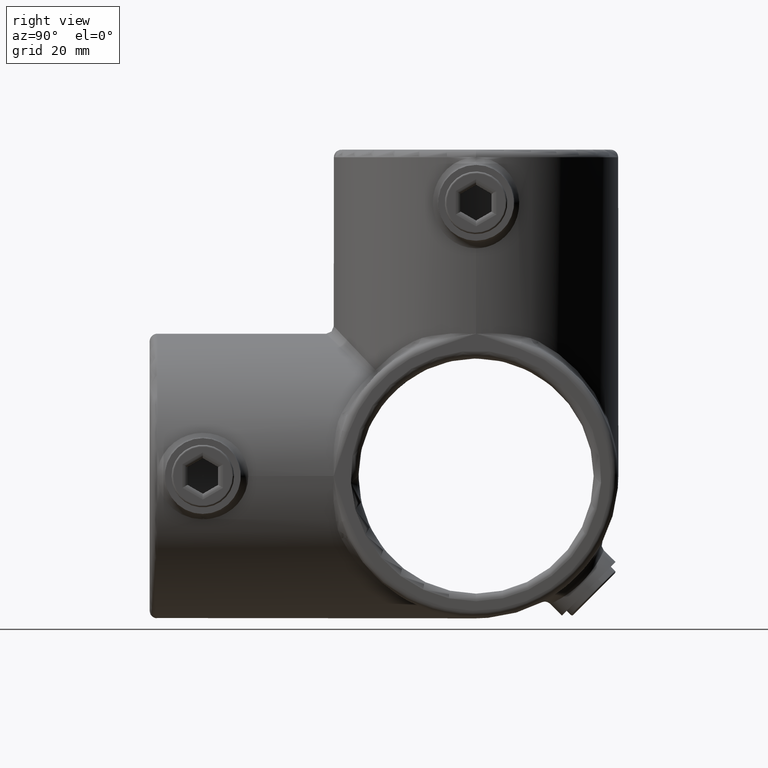
[diagram: clean part render]
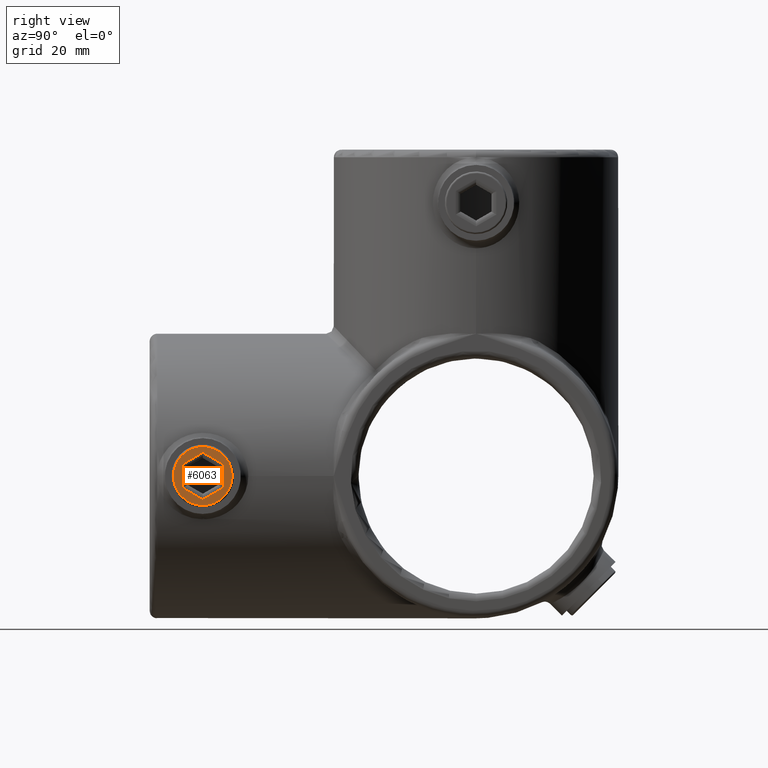
[diagram: same view with one face highlighted and labeled with its STEP entity id]
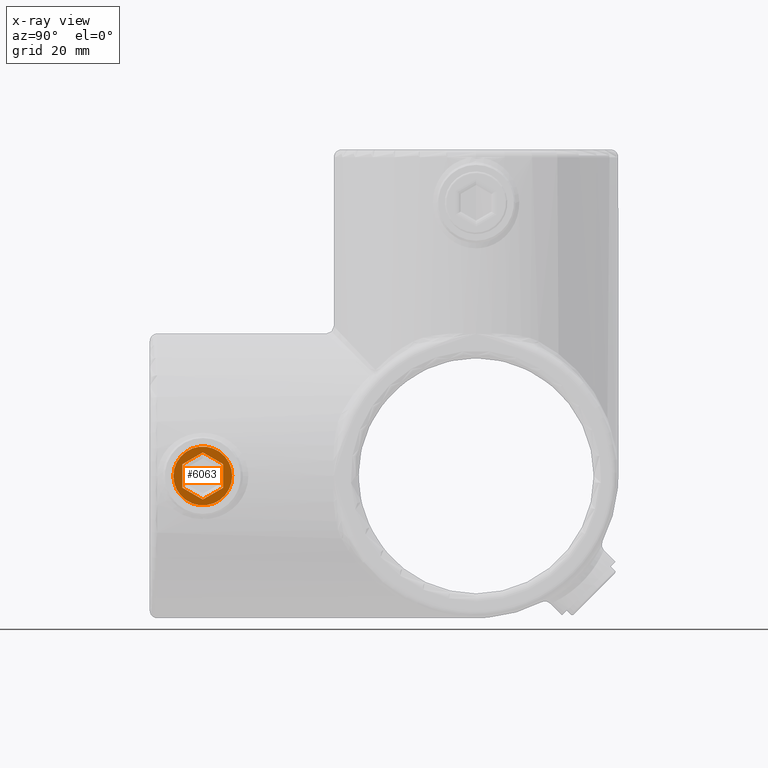
[diagram: x-ray of the same camera — body ghosted, the highlighted face saturated]
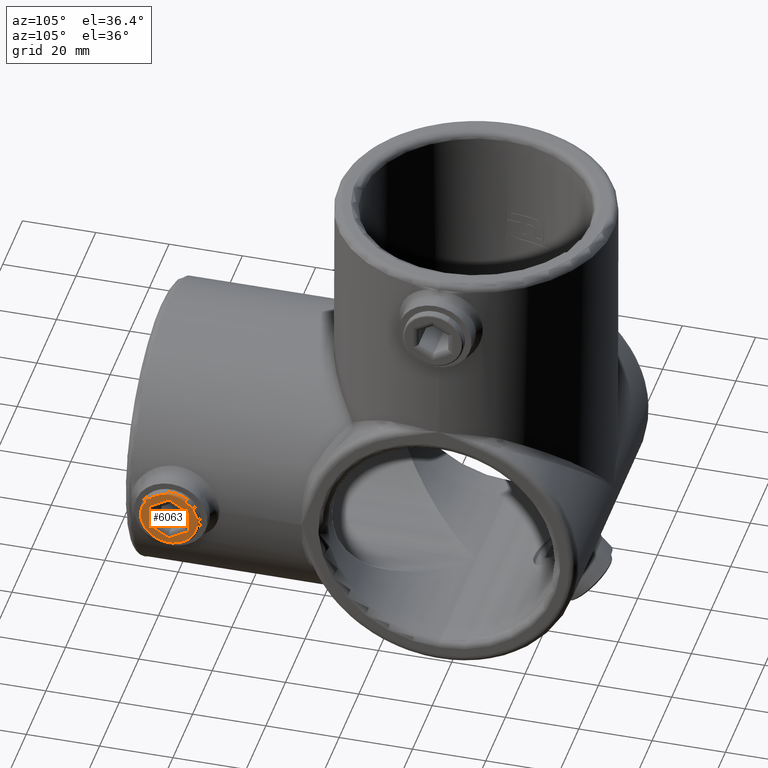
[diagram: same view with one face highlighted and labeled with its STEP entity id]
A machine part, right view. The second image highlights one B-rep face of the part: STEP entity #6063.
The next image is the same camera in x-ray: the body ghosted, the highlighted face saturated — about 0% of this face is hidden behind the body in this view.
A second angle (auxiliary view) of the same face is appended — the face is thin or edge-on in the first view.
In plain terms, the highlighted planar face has unit normal (1, 0, 0).
Its self-contained STEP definition (entity closure, byte-faithful):
#876 = VECTOR ( 'NONE', #11695, 1000.000000000000114 ) ;
#1047 = CARTESIAN_POINT ( 'NONE',  ( -5.964981491036366990, 13.00000000000000000, 0.4114378277661476790 ) ) ;
#1425 = PLANE ( 'NONE',  #4088 ) ;
#1537 = LINE ( 'NONE', #7346, #7640 ) ;
#1539 = EDGE_CURVE ( 'NONE', #14289, #4904, #1537, .T. ) ;
#1662 = VERTEX_POINT ( 'NONE', #3374 ) ;
#1779 = ORIENTED_EDGE ( 'NONE', *, *, #7609, .T. ) ;
#1805 = CARTESIAN_POINT ( 'NONE',  ( 3.101262615825974844, 13.00000000000000000, -5.371544418224547535 ) ) ;
#2284 = DIRECTION ( 'NONE',  ( -1.000000000000000000, 0.000000000000000000, -1.855319225643643478E-16 ) ) ;
#2707 = CARTESIAN_POINT ( 'NONE',  ( 0.000000000000000000, 13.00000000000000000, 0.000000000000000000 ) ) ;
#2946 = ORIENTED_EDGE ( 'NONE', *, *, #9112, .T. ) ;
#2993 = EDGE_LOOP ( 'NONE', ( #4885 ) ) ;
#3134 = VECTOR ( 'NONE', #14399, 1000.000000000000227 ) ;
#3296 = DIRECTION ( 'NONE',  ( 1.000000000000000000, -0.000000000000000000, 0.000000000000000000 ) ) ;
#3374 = CARTESIAN_POINT ( 'NONE',  ( -3.101262615825973068, 13.00000000000000000, -5.371544418224547535 ) ) ;
#4088 = AXIS2_PLACEMENT_3D ( 'NONE', #2707, #11572, #7659 ) ;
#4428 = LINE ( 'NONE', #15544, #14392 ) ;
#4587 = DIRECTION ( 'NONE',  ( 0.000000000000000000, 1.000000000000000000, 0.000000000000000000 ) ) ;
#4885 = ORIENTED_EDGE ( 'NONE', *, *, #11343, .T. ) ;
#4904 = VERTEX_POINT ( 'NONE', #11298 ) ;
#4990 = CARTESIAN_POINT ( 'NONE',  ( -2.626175134594815219, 13.00000000000000000, 5.371544418224547535 ) ) ;
#5654 = EDGE_CURVE ( 'NONE', #6940, #14289, #4428, .T. ) ;
#5712 = VERTEX_POINT ( 'NONE', #7907 ) ;
#6047 = CARTESIAN_POINT ( 'NONE',  ( -6.202525231651947024, 13.00000000000000000, 8.673617379884035472E-16 ) ) ;
#6063 = ADVANCED_FACE ( 'NONE', ( #13967, #15755 ), #1425, .T. ) ;
#6145 = DIRECTION ( 'NONE',  ( -0.4999999999999992228, 0.000000000000000000, 0.8660254037844390407 ) ) ;
#6852 = CARTESIAN_POINT ( 'NONE',  ( 6.202525231651947912, 13.00000000000000000, -1.409462824231155764E-15 ) ) ;
#6940 = VERTEX_POINT ( 'NONE', #1805 ) ;
#7048 = CARTESIAN_POINT ( 'NONE',  ( 2.626175134594813443, 13.00000000000000000, -5.371544418224547535 ) ) ;
#7164 = CARTESIAN_POINT ( 'NONE',  ( 0.000000000000000000, 13.00000000000000000, 7.750000000000000000 ) ) ;
#7346 = CARTESIAN_POINT ( 'NONE',  ( 3.338806356441557099, 13.00000000000000000, 4.960106590458402742 ) ) ;
#7609 = EDGE_CURVE ( 'NONE', #15599, #1662, #15839, .T. ) ;
#7640 = VECTOR ( 'NONE', #6145, 1000.000000000000227 ) ;
#7659 = DIRECTION ( 'NONE',  ( 0.000000000000000000, -0.000000000000000000, 1.000000000000000000 ) ) ;
#7731 = EDGE_CURVE ( 'NONE', #1662, #6940, #10453, .T. ) ;
#7759 = CIRCLE ( 'NONE', #8085, 7.750000000000000000 ) ;
#7907 = CARTESIAN_POINT ( 'NONE',  ( -3.101262615825973956, 13.00000000000000000, 5.371544418224547535 ) ) ;
#7982 = LINE ( 'NONE', #4990, #12366 ) ;
#8085 = AXIS2_PLACEMENT_3D ( 'NONE', #10848, #4587, #13422 ) ;
#8407 = VERTEX_POINT ( 'NONE', #7164 ) ;
#8918 = EDGE_CURVE ( 'NONE', #4904, #5712, #7982, .T. ) ;
#9112 = EDGE_CURVE ( 'NONE', #5712, #15599, #12772, .T. ) ;
#10091 = EDGE_LOOP ( 'NONE', ( #2946, #1779, #12939, #14217, #12257, #13540 ) ) ;
#10453 = LINE ( 'NONE', #7048, #16049 ) ;
#10848 = CARTESIAN_POINT ( 'NONE',  ( 0.000000000000000000, 13.00000000000000000, 0.000000000000000000 ) ) ;
#11298 = CARTESIAN_POINT ( 'NONE',  ( 3.101262615825978397, 13.00000000000000000, 5.371544418224548423 ) ) ;
#11343 = EDGE_CURVE ( 'NONE', #8407, #8407, #7759, .T. ) ;
#11572 = DIRECTION ( 'NONE',  ( 0.000000000000000000, 1.000000000000000000, 0.000000000000000000 ) ) ;
#11695 = DIRECTION ( 'NONE',  ( -0.4999999999999998335, 0.000000000000000000, -0.8660254037844387076 ) ) ;
#11912 = DIRECTION ( 'NONE',  ( 0.4999999999999998890, -0.000000000000000000, 0.8660254037844387076 ) ) ;
#12257 = ORIENTED_EDGE ( 'NONE', *, *, #1539, .T. ) ;
#12366 = VECTOR ( 'NONE', #2284, 1000.000000000000000 ) ;
#12772 = LINE ( 'NONE', #1047, #876 ) ;
#12939 = ORIENTED_EDGE ( 'NONE', *, *, #7731, .T. ) ;
#13164 = CARTESIAN_POINT ( 'NONE',  ( -3.338806356441553547, 13.00000000000000000, -4.960106590458400966 ) ) ;
#13422 = DIRECTION ( 'NONE',  ( 0.000000000000000000, 0.000000000000000000, 1.000000000000000000 ) ) ;
#13540 = ORIENTED_EDGE ( 'NONE', *, *, #8918, .T. ) ;
#13967 = FACE_BOUND ( 'NONE', #10091, .T. ) ;
#14217 = ORIENTED_EDGE ( 'NONE', *, *, #5654, .T. ) ;
#14289 = VERTEX_POINT ( 'NONE', #6852 ) ;
#14392 = VECTOR ( 'NONE', #11912, 1000.000000000000000 ) ;
#14399 = DIRECTION ( 'NONE',  ( 0.4999999999999997780, 0.000000000000000000, -0.8660254037844387076 ) ) ;
#15544 = CARTESIAN_POINT ( 'NONE',  ( 5.964981491036367878, 13.00000000000000000, -0.4114378277661481231 ) ) ;
#15599 = VERTEX_POINT ( 'NONE', #6047 ) ;
#15755 = FACE_OUTER_BOUND ( 'NONE', #2993, .T. ) ;
#15839 = LINE ( 'NONE', #13164, #3134 ) ;
#16049 = VECTOR ( 'NONE', #3296, 1000.000000000000000 ) ;